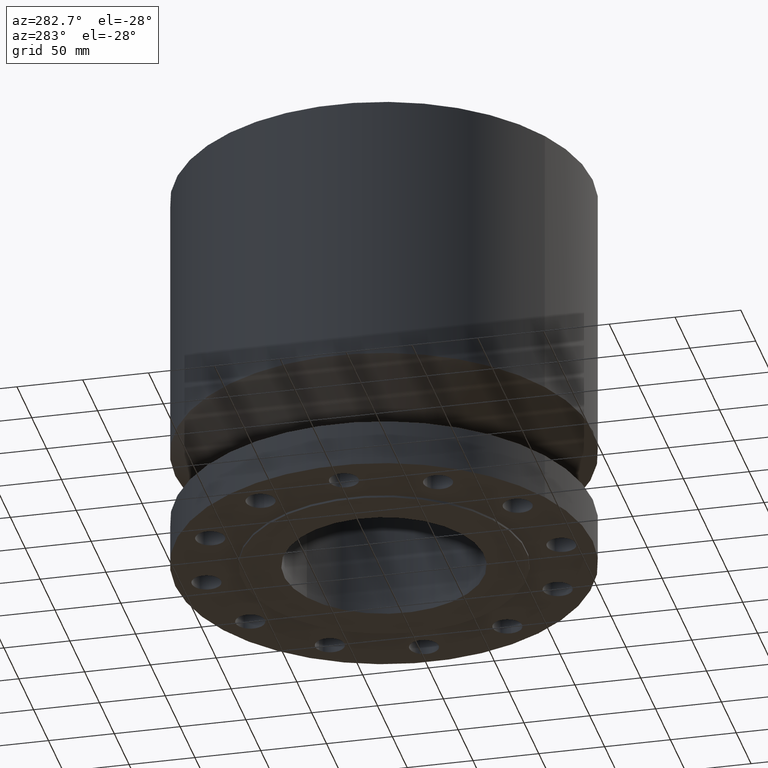
[diagram: clean part render]
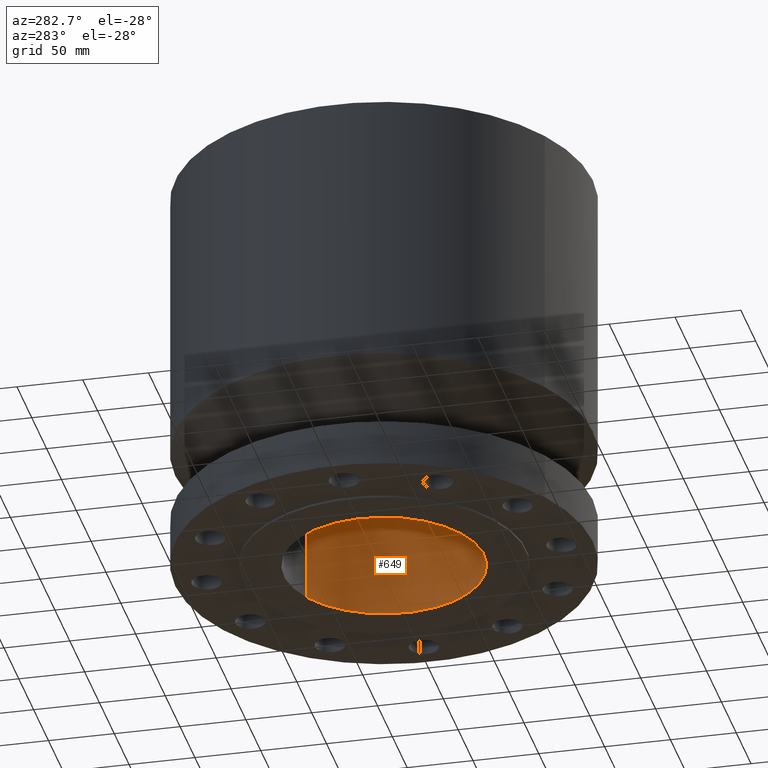
[diagram: same view with one face highlighted and labeled with its STEP entity id]
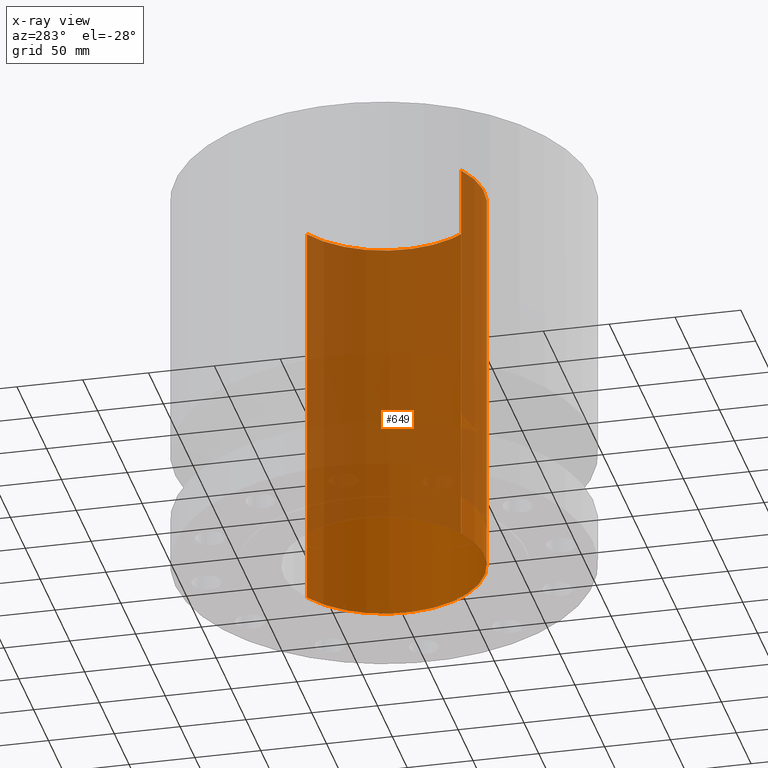
[diagram: x-ray of the same camera — body ghosted, the highlighted face saturated]
A machine part, auxiliary view. The second image highlights one B-rep face of the part: STEP entity #649.
The next image is the same camera in x-ray: the body ghosted, the highlighted face saturated — about 77% of this face is hidden behind the body in this view.
In plain terms, the highlighted cylindrical surface (partial cylindrical patch) has radius 76.2 mm, axis along (0, 0, -1).
Its self-contained STEP definition (entity closure, byte-faithful):
#611=AXIS2_PLACEMENT_3D('Circle Axis2P3D',#609,#610,$) ;
#622=AXIS2_PLACEMENT_3D('Cylinder Axis2P3D',#619,#620,#621) ;
#633=AXIS2_PLACEMENT_3D('Circle Axis2P3D',#631,#632,$) ;
#604=CARTESIAN_POINT('Vertex',(-1.43827661582,-2.63274768568,11.9375)) ;
#606=CARTESIAN_POINT('Vertex',(1.43827661582,2.63274768568,11.9375)) ;
#609=CARTESIAN_POINT('Axis2P3D Location',(0.,0.,11.9375)) ;
#619=CARTESIAN_POINT('Axis2P3D Location',(0.,0.,5.93750000002)) ;
#624=CARTESIAN_POINT('Line Origine',(1.43827661582,2.63274768568,5.93750000002)) ;
#628=CARTESIAN_POINT('Vertex',(1.43827661582,2.63274768568,-0.0625000000003)) ;
#631=CARTESIAN_POINT('Axis2P3D Location',(0.,0.,-0.0625000000003)) ;
#635=CARTESIAN_POINT('Vertex',(-1.43827661582,-2.63274768568,-0.0625000000003)) ;
#638=CARTESIAN_POINT('Line Origine',(-1.43827661582,-2.63274768568,5.93750000002)) ;
#610=DIRECTION('Axis2P3D Direction',(0.,0.,-0.0393700787402)) ;
#620=DIRECTION('Axis2P3D Direction',(0.,0.,-0.0393700787402)) ;
#621=DIRECTION('Axis2P3D XDirection',(-0.0188750212049,-0.0345504945626,0.)) ;
#625=DIRECTION('Vector Direction',(0.,0.,-0.0393700787402)) ;
#632=DIRECTION('Axis2P3D Direction',(0.,0.,-0.0393700787402)) ;
#639=DIRECTION('Vector Direction',(0.,0.,-0.0393700787402)) ;
#626=VECTOR('Line Direction',#625,0.0393700787402) ;
#640=VECTOR('Line Direction',#639,0.0393700787402) ;
#644=ORIENTED_EDGE('',*,*,#613,.F.) ;
#645=ORIENTED_EDGE('',*,*,#630,.T.) ;
#646=ORIENTED_EDGE('',*,*,#637,.T.) ;
#647=ORIENTED_EDGE('',*,*,#642,.F.) ;
#649=ADVANCED_FACE('PartBody',(#648),#623,.F.) ;
#612=CIRCLE('generated circle',#611,3.00000000001) ;
#634=CIRCLE('generated circle',#633,3.00000000001) ;
#623=CYLINDRICAL_SURFACE('generated cylinder',#622,3.00000000001) ;
#613=EDGE_CURVE('',#607,#605,#612,.T.) ;
#630=EDGE_CURVE('',#607,#629,#627,.T.) ;
#637=EDGE_CURVE('',#629,#636,#634,.T.) ;
#642=EDGE_CURVE('',#605,#636,#641,.T.) ;
#643=EDGE_LOOP('',(#644,#645,#646,#647)) ;
#648=FACE_OUTER_BOUND('',#643,.T.) ;
#627=LINE('Line',#624,#626) ;
#641=LINE('Line',#638,#640) ;
#605=VERTEX_POINT('',#604) ;
#607=VERTEX_POINT('',#606) ;
#629=VERTEX_POINT('',#628) ;
#636=VERTEX_POINT('',#635) ;